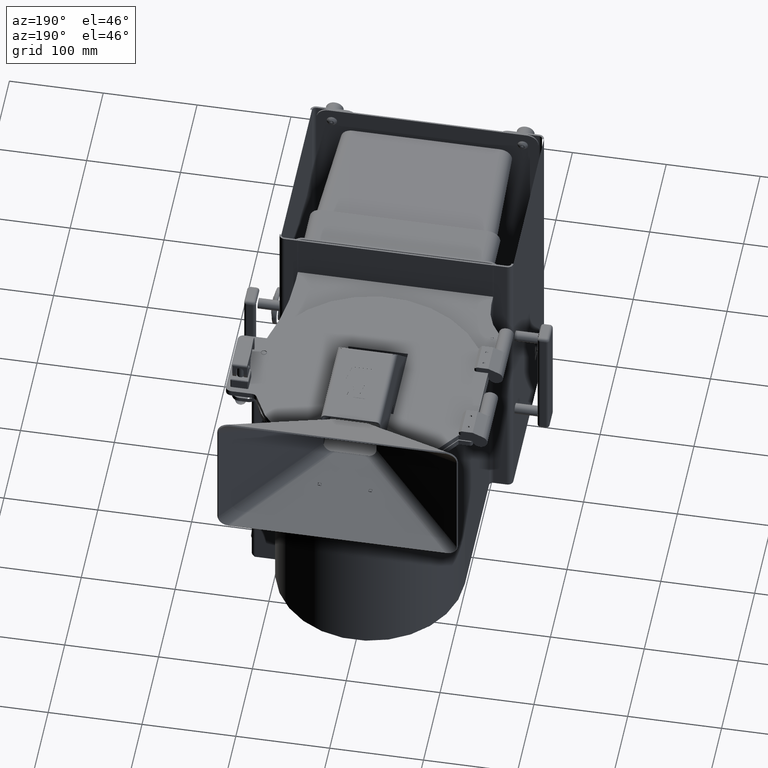
[diagram: clean part render]
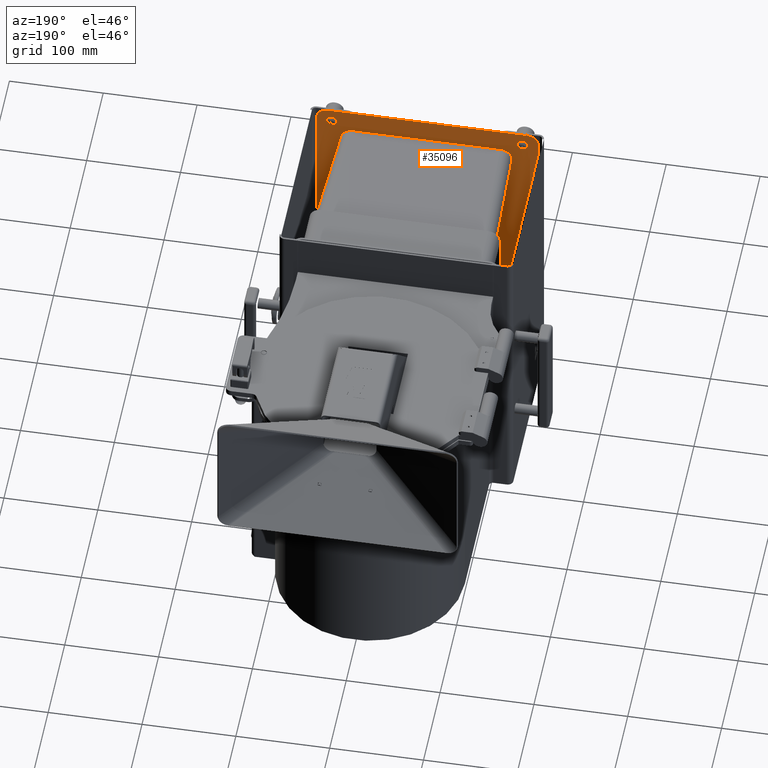
[diagram: same view with one face highlighted and labeled with its STEP entity id]
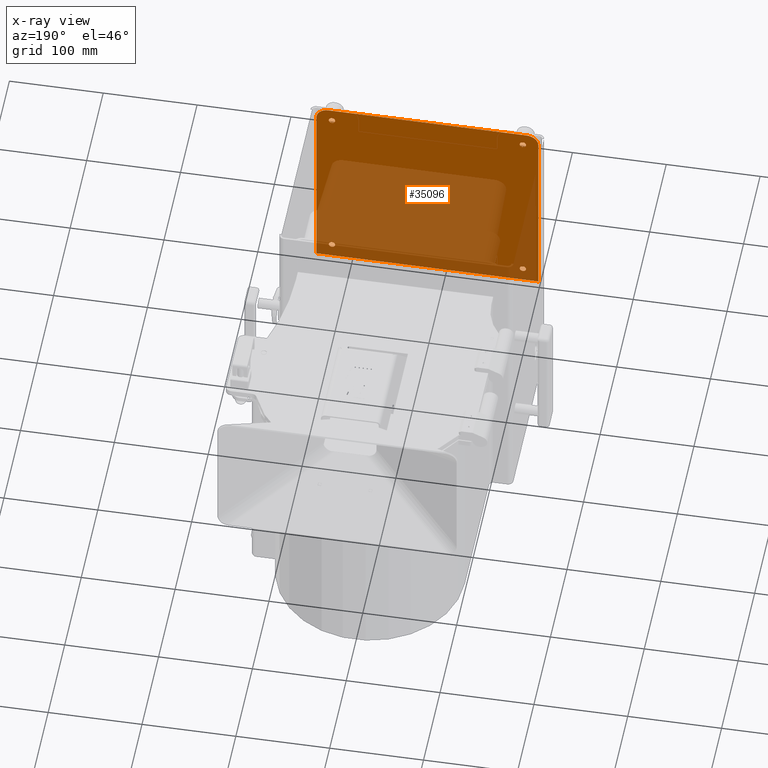
[diagram: x-ray of the same camera — body ghosted, the highlighted face saturated]
A machine part, auxiliary view. The second image highlights one B-rep face of the part: STEP entity #35096.
The next image is the same camera in x-ray: the body ghosted, the highlighted face saturated — about 59% of this face is hidden behind the body in this view.
In plain terms, the highlighted planar face has unit normal (0, -1, -0).
Its self-contained STEP definition (entity closure, byte-faithful):
#988 = FACE_BOUND ( 'NONE', #34871, .T. ) ;
#2425 = EDGE_CURVE ( 'NONE', #37711, #48485, #52949, .T. ) ;
#3143 = VERTEX_POINT ( 'NONE', #10634 ) ;
#5710 = VERTEX_POINT ( 'NONE', #67876 ) ;
#5731 = CARTESIAN_POINT ( 'NONE',  ( -9.944963561306893965E-15, -7.512399999999999523, 4.112600000000001366 ) ) ;
#6905 = CARTESIAN_POINT ( 'NONE',  ( -4.005000000000010552, -7.512400000000027944, 12.34750000000000369 ) ) ;
#7062 = DIRECTION ( 'NONE',  ( 1.000000000000000000, 2.921924854848433957E-16, 2.391543916884019777E-17 ) ) ;
#7107 = ORIENTED_EDGE ( 'NONE', *, *, #49430, .F. ) ;
#7858 = CARTESIAN_POINT ( 'NONE',  ( -4.005000000000010552, -7.512400000000002187, 4.839000000000003077 ) ) ;
#8730 = CIRCLE ( 'NONE', #76380, 0.1329999999999999238 ) ;
#8913 = CIRCLE ( 'NONE', #53445, 0.1329999999999999238 ) ;
#9749 = EDGE_CURVE ( 'NONE', #5710, #57651, #14951, .T. ) ;
#9915 = AXIS2_PLACEMENT_3D ( 'NONE', #66710, #30382, #71515 ) ;
#10176 = EDGE_CURVE ( 'NONE', #69416, #20950, #16611, .T. ) ;
#10634 = CARTESIAN_POINT ( 'NONE',  ( 4.004999999999991012, -7.512400000000000411, 4.839000000000003077 ) ) ;
#12592 = DIRECTION ( 'NONE',  ( 0.000000000000000000, 0.000000000000000000, -1.000000000000000000 ) ) ;
#12894 = CARTESIAN_POINT ( 'NONE',  ( -4.657400000000014195, -7.512400000000000411, 4.112600000000001366 ) ) ;
#12961 = DIRECTION ( 'NONE',  ( 0.000000000000000000, 0.000000000000000000, -1.000000000000000000 ) ) ;
#13070 = LINE ( 'NONE', #44140, #65562 ) ;
#13705 = DIRECTION ( 'NONE',  ( 0.000000000000000000, 0.000000000000000000, -1.000000000000000000 ) ) ;
#14806 = ORIENTED_EDGE ( 'NONE', *, *, #59516, .F. ) ;
#14951 = CIRCLE ( 'NONE', #59568, 0.4999999999999996114 ) ;
#16611 = LINE ( 'NONE', #64561, #48551 ) ;
#16866 = DIRECTION ( 'NONE',  ( -2.921924854848434943E-16, 1.000000000000000000, 3.371374513075485242E-15 ) ) ;
#18600 = ORIENTED_EDGE ( 'NONE', *, *, #38000, .F. ) ;
#18840 = CIRCLE ( 'NONE', #76320, 0.1329999999999999238 ) ;
#18901 = FACE_BOUND ( 'NONE', #45461, .T. ) ;
#19442 = VECTOR ( 'NONE', #74037, 39.37007874015748143 ) ;
#19462 = CARTESIAN_POINT ( 'NONE',  ( -4.005000000000010552, -7.512400000000002187, 5.105000000000002203 ) ) ;
#20518 = CARTESIAN_POINT ( 'NONE',  ( 4.004999999999991012, -7.512400000000025280, 12.34750000000000369 ) ) ;
#20950 = VERTEX_POINT ( 'NONE', #61244 ) ;
#21349 = DIRECTION ( 'NONE',  ( 0.000000000000000000, 0.000000000000000000, -1.000000000000000000 ) ) ;
#22708 = CARTESIAN_POINT ( 'NONE',  ( 4.157399999999994655, -7.512400000000025280, 12.42560000000000286 ) ) ;
#24737 = EDGE_LOOP ( 'NONE', ( #55110, #43490, #62232, #46151, #48573, #73073 ) ) ;
#25805 = VERTEX_POINT ( 'NONE', #49951 ) ;
#26116 = DIRECTION ( 'NONE',  ( -2.921924854848434943E-16, 1.000000000000000000, 3.371374513075485242E-15 ) ) ;
#28747 = VERTEX_POINT ( 'NONE', #19462 ) ;
#30113 = DIRECTION ( 'NONE',  ( -2.391543916884025324E-17, -3.371374513075487609E-15, 1.000000000000000000 ) ) ;
#30359 = CARTESIAN_POINT ( 'NONE',  ( -4.657400000000014195, -7.512400000000027944, 12.42560000000000286 ) ) ;
#30382 = DIRECTION ( 'NONE',  ( -2.921924854848434943E-16, 1.000000000000000000, 3.371374513075486031E-15 ) ) ;
#30783 = DIRECTION ( 'NONE',  ( 2.391543916884025324E-17, 3.371374513075487609E-15, -1.000000000000000000 ) ) ;
#31474 = AXIS2_PLACEMENT_3D ( 'NONE', #5731, #60442, #30113 ) ;
#31752 = EDGE_CURVE ( 'NONE', #25805, #5710, #13070, .T. ) ;
#31883 = VERTEX_POINT ( 'NONE', #33379 ) ;
#32744 = CARTESIAN_POINT ( 'NONE',  ( 4.004999999999991012, -7.512400000000000411, 4.972000000000002196 ) ) ;
#33278 = CARTESIAN_POINT ( 'NONE',  ( 4.004999999999991012, -7.512400000000000411, 4.972000000000002196 ) ) ;
#33379 = CARTESIAN_POINT ( 'NONE',  ( 4.004999999999991012, -7.512400000000025280, 12.48050000000000281 ) ) ;
#33708 = DIRECTION ( 'NONE',  ( -2.921924854848434943E-16, 1.000000000000000000, 3.371374513075485242E-15 ) ) ;
#34871 = EDGE_LOOP ( 'NONE', ( #37885, #44928 ) ) ;
#35096 = ADVANCED_FACE ( 'NONE', ( #36441, #62000, #18901, #988, #78453 ), #66851, .F. ) ;
#35233 = DIRECTION ( 'NONE',  ( 0.000000000000000000, 0.000000000000000000, -1.000000000000000000 ) ) ;
#36441 = FACE_BOUND ( 'NONE', #58087, .T. ) ;
#36828 = CARTESIAN_POINT ( 'NONE',  ( -4.005000000000010552, -7.512400000000002187, 4.972000000000002196 ) ) ;
#37128 = VERTEX_POINT ( 'NONE', #30359 ) ;
#37711 = VERTEX_POINT ( 'NONE', #58212 ) ;
#37885 = ORIENTED_EDGE ( 'NONE', *, *, #72631, .F. ) ;
#38000 = EDGE_CURVE ( 'NONE', #48485, #37711, #49538, .T. ) ;
#38340 = EDGE_CURVE ( 'NONE', #57651, #20950, #78735, .T. ) ;
#40207 = AXIS2_PLACEMENT_3D ( 'NONE', #36828, #26116, #13705 ) ;
#42301 = CARTESIAN_POINT ( 'NONE',  ( 4.004999999999991012, -7.512400000000000411, 5.105000000000002203 ) ) ;
#42828 = CARTESIAN_POINT ( 'NONE',  ( -4.005000000000010552, -7.512400000000027944, 12.21450000000000458 ) ) ;
#42830 = CIRCLE ( 'NONE', #76123, 0.1329999999999999238 ) ;
#43181 = AXIS2_PLACEMENT_3D ( 'NONE', #70837, #16866, #35233 ) ;
#43490 = ORIENTED_EDGE ( 'NONE', *, *, #50648, .T. ) ;
#43579 = DIRECTION ( 'NONE',  ( 0.000000000000000000, 0.000000000000000000, -1.000000000000000000 ) ) ;
#44140 = CARTESIAN_POINT ( 'NONE',  ( -1.015573032670188279E-14, -7.512400000000028832, 12.92560000000000464 ) ) ;
#44735 = CARTESIAN_POINT ( 'NONE',  ( 4.657399999999994655, -7.512400000000025280, 12.42560000000000286 ) ) ;
#44928 = ORIENTED_EDGE ( 'NONE', *, *, #62745, .F. ) ;
#45244 = VERTEX_POINT ( 'NONE', #73193 ) ;
#45461 = EDGE_LOOP ( 'NONE', ( #14806, #62773 ) ) ;
#46151 = ORIENTED_EDGE ( 'NONE', *, *, #9749, .T. ) ;
#48485 = VERTEX_POINT ( 'NONE', #42828 ) ;
#48551 = VECTOR ( 'NONE', #71727, 39.37007874015748143 ) ;
#48573 = ORIENTED_EDGE ( 'NONE', *, *, #38340, .T. ) ;
#49242 = DIRECTION ( 'NONE',  ( -2.921924854848434943E-16, 1.000000000000000000, 3.371374513075485242E-15 ) ) ;
#49430 = EDGE_CURVE ( 'NONE', #45244, #31883, #42830, .T. ) ;
#49538 = CIRCLE ( 'NONE', #43181, 0.1329999999999999238 ) ;
#49951 = CARTESIAN_POINT ( 'NONE',  ( -4.157400000000014195, -7.512400000000029721, 12.92560000000000464 ) ) ;
#50648 = EDGE_CURVE ( 'NONE', #37128, #25805, #68630, .T. ) ;
#51629 = CARTESIAN_POINT ( 'NONE',  ( -4.005000000000010552, -7.512400000000002187, 4.972000000000002196 ) ) ;
#52949 = CIRCLE ( 'NONE', #58049, 0.1329999999999999238 ) ;
#52988 = DIRECTION ( 'NONE',  ( 0.000000000000000000, -4.370956789862824305E-15, 1.000000000000000000 ) ) ;
#53387 = DIRECTION ( 'NONE',  ( -2.921924854848434943E-16, 1.000000000000000000, 3.371374513075486031E-15 ) ) ;
#53445 = AXIS2_PLACEMENT_3D ( 'NONE', #67320, #49242, #12592 ) ;
#54046 = VECTOR ( 'NONE', #30783, 39.37007874015748143 ) ;
#54145 = AXIS2_PLACEMENT_3D ( 'NONE', #51629, #33708, #21349 ) ;
#55110 = ORIENTED_EDGE ( 'NONE', *, *, #65807, .T. ) ;
#55962 = DIRECTION ( 'NONE',  ( -2.921924854848434943E-16, 1.000000000000000000, 3.371374513075485242E-15 ) ) ;
#57651 = VERTEX_POINT ( 'NONE', #44735 ) ;
#58049 = AXIS2_PLACEMENT_3D ( 'NONE', #6905, #55962, #43579 ) ;
#58087 = EDGE_LOOP ( 'NONE', ( #18600, #63850 ) ) ;
#58212 = CARTESIAN_POINT ( 'NONE',  ( -4.005000000000010552, -7.512400000000027944, 12.48050000000000281 ) ) ;
#59354 = EDGE_CURVE ( 'NONE', #28747, #64085, #78476, .T. ) ;
#59516 = EDGE_CURVE ( 'NONE', #64085, #28747, #70816, .T. ) ;
#59568 = AXIS2_PLACEMENT_3D ( 'NONE', #22708, #53387, #52988 ) ;
#60350 = VERTEX_POINT ( 'NONE', #42301 ) ;
#60396 = CARTESIAN_POINT ( 'NONE',  ( -4.657400000000014195, -7.512400000000000411, 4.330100000000000726 ) ) ;
#60442 = DIRECTION ( 'NONE',  ( 2.921924854848434943E-16, -1.000000000000000000, -3.371374513075487609E-15 ) ) ;
#60695 = CARTESIAN_POINT ( 'NONE',  ( 4.657399999999994655, -7.512399999999996858, 4.112600000000002254 ) ) ;
#61244 = CARTESIAN_POINT ( 'NONE',  ( 4.657399999999996432, -7.512399999999999523, 4.330099999999998950 ) ) ;
#62000 = FACE_BOUND ( 'NONE', #77114, .T. ) ;
#62232 = ORIENTED_EDGE ( 'NONE', *, *, #31752, .T. ) ;
#62745 = EDGE_CURVE ( 'NONE', #60350, #3143, #8730, .T. ) ;
#62773 = ORIENTED_EDGE ( 'NONE', *, *, #59354, .F. ) ;
#63487 = DIRECTION ( 'NONE',  ( 0.000000000000000000, 0.000000000000000000, -1.000000000000000000 ) ) ;
#63799 = ORIENTED_EDGE ( 'NONE', *, *, #78506, .F. ) ;
#63850 = ORIENTED_EDGE ( 'NONE', *, *, #2425, .F. ) ;
#64085 = VERTEX_POINT ( 'NONE', #7858 ) ;
#64561 = CARTESIAN_POINT ( 'NONE',  ( -4.657400000000014195, -7.512400000000000411, 4.330100000000000726 ) ) ;
#64834 = DIRECTION ( 'NONE',  ( -2.921924854848434943E-16, 1.000000000000000000, 3.371374513075485242E-15 ) ) ;
#65221 = DIRECTION ( 'NONE',  ( 0.000000000000000000, 0.000000000000000000, -1.000000000000000000 ) ) ;
#65562 = VECTOR ( 'NONE', #7062, 39.37007874015748143 ) ;
#65807 = EDGE_CURVE ( 'NONE', #69416, #37128, #78835, .T. ) ;
#66710 = CARTESIAN_POINT ( 'NONE',  ( -4.157400000000014195, -7.512400000000027944, 12.42560000000000286 ) ) ;
#66851 = PLANE ( 'NONE',  #31474 ) ;
#67320 = CARTESIAN_POINT ( 'NONE',  ( 4.004999999999991012, -7.512400000000025280, 12.34750000000000369 ) ) ;
#67876 = CARTESIAN_POINT ( 'NONE',  ( 4.157399999999994655, -7.512400000000027944, 12.92560000000000464 ) ) ;
#68630 = CIRCLE ( 'NONE', #9915, 0.4999999999999996114 ) ;
#69262 = DIRECTION ( 'NONE',  ( -2.921924854848434943E-16, 1.000000000000000000, 3.371374513075485242E-15 ) ) ;
#69416 = VERTEX_POINT ( 'NONE', #60396 ) ;
#70816 = CIRCLE ( 'NONE', #40207, 0.1329999999999999238 ) ;
#70837 = CARTESIAN_POINT ( 'NONE',  ( -4.005000000000010552, -7.512400000000027944, 12.34750000000000369 ) ) ;
#71515 = DIRECTION ( 'NONE',  ( 0.000000000000000000, -4.370956789862824305E-15, 1.000000000000000000 ) ) ;
#71727 = DIRECTION ( 'NONE',  ( 1.000000000000000000, 2.921924854848433464E-16, 3.857945768595415238E-17 ) ) ;
#72631 = EDGE_CURVE ( 'NONE', #3143, #60350, #18840, .T. ) ;
#73073 = ORIENTED_EDGE ( 'NONE', *, *, #10176, .F. ) ;
#73193 = CARTESIAN_POINT ( 'NONE',  ( 4.004999999999991012, -7.512400000000025280, 12.21450000000000458 ) ) ;
#74037 = DIRECTION ( 'NONE',  ( -2.391543916884025324E-17, -3.371374513075487609E-15, 1.000000000000000000 ) ) ;
#74750 = DIRECTION ( 'NONE',  ( -2.921924854848434943E-16, 1.000000000000000000, 3.371374513075485242E-15 ) ) ;
#76123 = AXIS2_PLACEMENT_3D ( 'NONE', #20518, #69262, #12961 ) ;
#76320 = AXIS2_PLACEMENT_3D ( 'NONE', #33278, #64834, #65221 ) ;
#76380 = AXIS2_PLACEMENT_3D ( 'NONE', #32744, #74750, #63487 ) ;
#77114 = EDGE_LOOP ( 'NONE', ( #7107, #63799 ) ) ;
#78453 = FACE_OUTER_BOUND ( 'NONE', #24737, .T. ) ;
#78476 = CIRCLE ( 'NONE', #54145, 0.1329999999999999238 ) ;
#78506 = EDGE_CURVE ( 'NONE', #31883, #45244, #8913, .T. ) ;
#78735 = LINE ( 'NONE', #60695, #54046 ) ;
#78835 = LINE ( 'NONE', #12894, #19442 ) ;